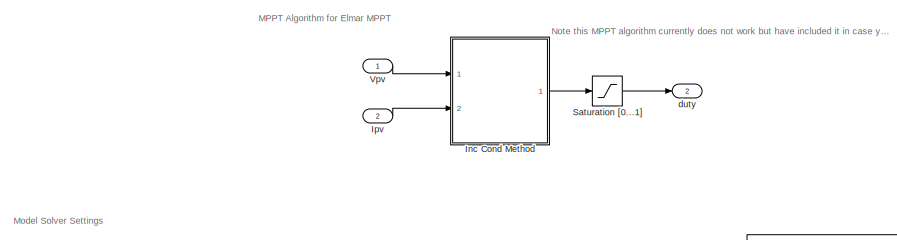
[diagram: root canvas - part 1/6, top left region]
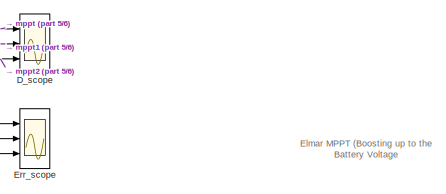
[diagram: root canvas - part 2/6, top right region]
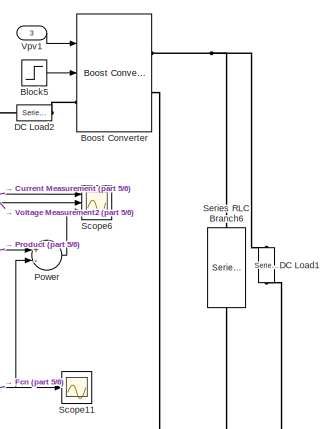
[diagram: root canvas - part 3/6, middle right region]
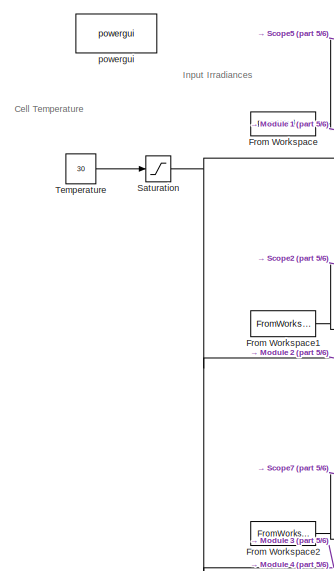
[diagram: root canvas - part 4/6, middle left region]
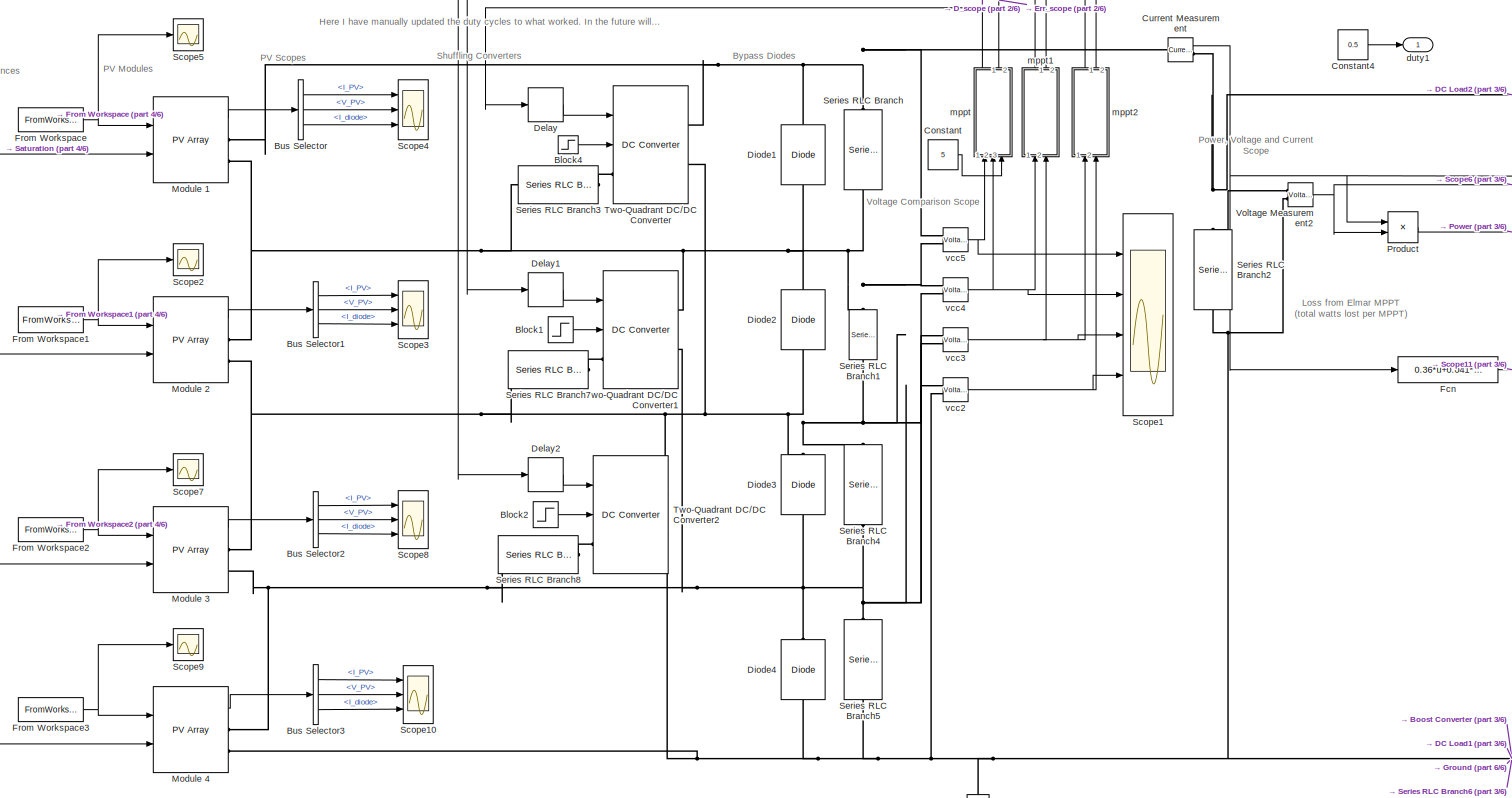
[diagram: root canvas - part 5/6, central region]
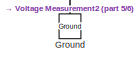
[diagram: root canvas - part 6/6, bottom center region]
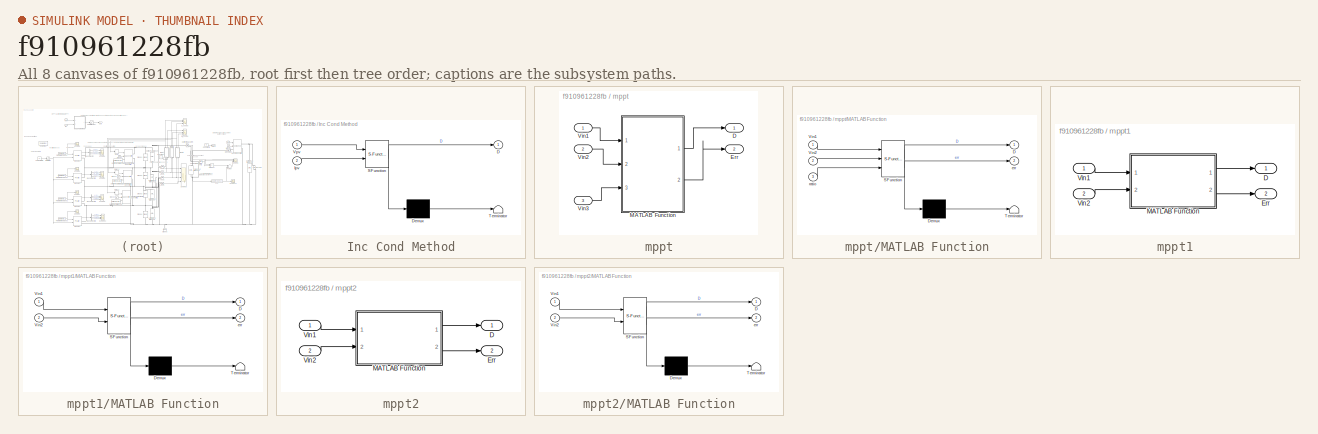
[diagram: thumbnail index - all 8 canvases of the model, root first then tree order]
MODEL slx_f910961228fb
KIND model
CONFIG AbsTol = auto
CONFIG EnableMultiTasking = off
CONFIG FixedStep = auto
CONFIG MaxStep = auto
CONFIG MinStep = auto
CONFIG RelTol = 1e-3
CONFIG SampleTimeConstraint = Unconstrained
CONFIG Solver = FixedStepDiscrete
CONFIG SolverName = FixedStepDiscrete
CONFIG StartTime = 0.0
CONFIG StopTime = 0.5
BLOCK [Step] Block1
  After = 0
  Before = 1
  SampleTime = 5e-5
  Time = 0
BLOCK [Step] Block2
  After = 0
  Before = 1
  SampleTime = 5e-5
  Time = 0
BLOCK [Step] Block4
  After = 0
  Before = 1
  SampleTime = 5e-5
  Time = 0
BLOCK [Step] Block5
  After = 0
  Before = 1
  SampleTime = 5e-5
  Time = 0
BLOCK [Reference] Boost Converter  REF=powerlib/Power
Electronics/Boost Converter
  Ports = [2, 0, 0, 0, 0, 1, 2]
  SourceBlock = powerlib/Power\nElectronics/Boost Converter
  SourceProductBaseCode = PS
  SourceProductName = Simscape Electrical
  SourceType = Boost Converter
BLOCK [BusSelector] Bus Selector
  OutputAsBus = off
  OutputSignals = I_PV,V_PV,I_diode
  Ports = [1, 3]
BLOCK [BusSelector] Bus Selector1
  OutputAsBus = off
  OutputSignals = I_PV,V_PV,I_diode
  Ports = [1, 3]
BLOCK [BusSelector] Bus Selector2
  OutputAsBus = off
  OutputSignals = I_PV,V_PV,I_diode
  Ports = [1, 3]
BLOCK [BusSelector] Bus Selector3
  OutputAsBus = off
  OutputSignals = I_PV,V_PV,I_diode
  Ports = [1, 3]
BLOCK [Constant] Constant
  Value = 5
BLOCK [Constant] Constant4
  Value = 0.5
BLOCK [Reference] Current Measurement  REF=powerlib/Measurements/Current Measurement
  Ports = [0, 1, 0, 0, 0, 1, 1]
  SourceBlock = powerlib/Measurements/Current Measurement
  SourceProductBaseCode = PS
  SourceProductName = Simscape Electrical
  SourceType = Current Measurement
  UserDataPersistent = on
BLOCK [Reference] DC Load1  REF=powerlib/Elements/Series RLC Branch
  Ports = [0, 0, 0, 0, 0, 1, 1]
  SourceBlock = powerlib/Elements/Series RLC Branch
  SourceProductBaseCode = PS
  SourceProductName = Simscape Electrical
  SourceType = Series RLC Branch
BLOCK [Reference] DC Load2  REF=powerlib/Elements/Series RLC Branch
  Ports = [0, 0, 0, 0, 0, 1, 1]
  SourceBlock = powerlib/Elements/Series RLC Branch
  SourceProductBaseCode = PS
  SourceProductName = Simscape Electrical
  SourceType = Series RLC Branch
BLOCK [Scope] D_scope
  Floating = off
  NumInputPorts = 3
  Ports = [3]
  ScopeSpecificationString = Simulink.scopes.TimeScopeBlockCfg('CurrentConfiguration', extmgr.ConfigurationSet(extmgr.Configuration('Core','General UI',true),extmgr.Configuration('Core','Source UI',true),extmgr.Configuration('Sources','WiredSimulink',true,'DataLoggingVariableName','ScopeData1'),extmgr.Configuration('Visuals','Time Domain',true,'SerializedDisplays',{struct('MinYLimReal','0.47962','MaxYLimReal','0.50197','YLabe...<+1815ch>
BLOCK [Delay] Delay
  DelayLength = 1
  InitialCondition = 0
  InputPortMap = u0
  Ports = [1, 1]
BLOCK [Delay] Delay1
  DelayLength = 1
  InitialCondition = 0
  InputPortMap = u0
  Ports = [1, 1]
BLOCK [Delay] Delay2
  DelayLength = 1
  InitialCondition = 0
  InputPortMap = u0
  Ports = [1, 1]
BLOCK [Reference] Diode1  REF=powerlib/Power
Electronics/Diode
  Ports = [0, 0, 0, 0, 0, 1, 1]
  SourceBlock = powerlib/Power\nElectronics/Diode
  SourceProductBaseCode = PS
  SourceProductName = Simscape Electrical
  SourceType = Diode
BLOCK [Reference] Diode2  REF=powerlib/Power
Electronics/Diode
  Ports = [0, 0, 0, 0, 0, 1, 1]
  SourceBlock = powerlib/Power\nElectronics/Diode
  SourceProductBaseCode = PS
  SourceProductName = Simscape Electrical
  SourceType = Diode
BLOCK [Reference] Diode3  REF=powerlib/Power
Electronics/Diode
  Ports = [0, 0, 0, 0, 0, 1, 1]
  SourceBlock = powerlib/Power\nElectronics/Diode
  SourceProductBaseCode = PS
  SourceProductName = Simscape Electrical
  SourceType = Diode
BLOCK [Reference] Diode4  REF=powerlib/Power
Electronics/Diode
  Ports = [0, 0, 0, 0, 0, 1, 1]
  SourceBlock = powerlib/Power\nElectronics/Diode
  SourceProductBaseCode = PS
  SourceProductName = Simscape Electrical
  SourceType = Diode
BLOCK [Scope] Err_scope
  Floating = off
  NumInputPorts = 3
  Ports = [3]
  ScopeSpecificationString = Simulink.scopes.TimeScopeBlockCfg('CurrentConfiguration', extmgr.ConfigurationSet(extmgr.Configuration('Core','General UI',true),extmgr.Configuration('Core','Source UI',true),extmgr.Configuration('Sources','WiredSimulink',true,'DataLoggingVariableName','ScopeData1'),extmgr.Configuration('Visuals','Time Domain',true,'SerializedDisplays',{struct('MinYLimReal','-3.57877','MaxYLimReal','3.91272','YLab...<+1512ch>
BLOCK [Fcn] Fcn
  Expr = 0.36*u+0.041*(u^2)
BLOCK [FromWorkspace] From Workspace
  OutDataTypeStr = double
  OutputAfterFinalValue = Holding final value
  SampleTime = 0
  VariableName = I1
  ZeroCross = on
BLOCK [FromWorkspace] From Workspace1
  OutDataTypeStr = double
  OutputAfterFinalValue = Holding final value
  SampleTime = 0
  VariableName = I3
  ZeroCross = on
BLOCK [FromWorkspace] From Workspace2
  OutDataTypeStr = double
  OutputAfterFinalValue = Holding final value
  SampleTime = 0
  VariableName = I5
  ZeroCross = on
BLOCK [FromWorkspace] From Workspace3
  OutDataTypeStr = double
  OutputAfterFinalValue = Holding final value
  SampleTime = 0
  VariableName = I7
  ZeroCross = on
BLOCK [Reference] Ground  REF=powerlib/Elements/Ground
  Ports = [0, 0, 0, 0, 0, 1]
  SourceBlock = powerlib/Elements/Ground
  SourceProductBaseCode = PS
  SourceProductName = Simscape Electrical
  SourceType = Ground
BLOCK [SubSystem] Inc Cond Method
  ErrorFcn = Stateflow.Translate.translate
  PermitHierarchicalResolution = ExplicitOnly
  Ports = [2, 1]
  RequestExecContextInheritance = off
  SFBlockType = Chart
  TreatAsAtomicUnit = on
BLOCK [Demux] Inc Cond Method/ Demux 
  Outputs = 1
  Ports = [1, 1]
BLOCK [S-Function] Inc Cond Method/ SFunction 
  EnableBusSupport = on
  FunctionName = sf_sfun
  PortCounts = [2 2]
  Ports = [2, 2]
  SFcnIsStateOwnerBlock = off
  SFunctionDeploymentMode = off
  Tag = Stateflow S-Function PV_Model_1ststring_shuffle_mppt 1
BLOCK [Terminator] Inc Cond Method/ Terminator 
BLOCK [Outport] Inc Cond Method/D
  IconDisplay = Port number
BLOCK [Inport] Inc Cond Method/Ipv
  IconDisplay = Port number
  Port = 2
BLOCK [Inport] Inc Cond Method/Vpv
  IconDisplay = Port number
BLOCK [Inport] Ipv
  IconDisplay = Port number
  OutDataTypeStr = double
  Port = 2
  PortDimensions = 1
  SampleTime = [0.0001,0]
  SamplingMode = Sample based
  SignalType = real
BLOCK [Reference] Module 1  REF=re_lib/Solar/PV Array
  Ports = [2, 1, 0, 0, 0, 0, 2]
  SourceBlock = re_lib/Solar/PV Array
  SourceProductBaseCode = PS
  SourceProductName = Simscape Electrical
  SourceType = PV array
BLOCK [Reference] Module 2  REF=re_lib/Solar/PV Array
  Ports = [2, 1, 0, 0, 0, 0, 2]
  SourceBlock = re_lib/Solar/PV Array
  SourceProductBaseCode = PS
  SourceProductName = Simscape Electrical
  SourceType = PV array
BLOCK [Reference] Module 3  REF=re_lib/Solar/PV Array
  Ports = [2, 1, 0, 0, 0, 0, 2]
  SourceBlock = re_lib/Solar/PV Array
  SourceProductBaseCode = PS
  SourceProductName = Simscape Electrical
  SourceType = PV array
BLOCK [Reference] Module 4  REF=re_lib/Solar/PV Array
  Ports = [2, 1, 0, 0, 0, 0, 2]
  SourceBlock = re_lib/Solar/PV Array
  SourceProductBaseCode = PS
  SourceProductName = Simscape Electrical
  SourceType = PV array
BLOCK [Sum] Power
  InputSameDT = off
  Inputs = +-
  OutDataTypeStr = Inherit: Inherit via internal rule
  Ports = [2, 1]
  SaturateOnIntegerOverflow = off
BLOCK [Product] Product
  InputSameDT = off
  OutDataTypeStr = Inherit: Inherit via internal rule
  Ports = [2, 1]
  RndMeth = Floor
  SaturateOnIntegerOverflow = off
BLOCK [Saturate] Saturation
  InputPortMap = u0
  LowerLimit = 5
  Ports = [1, 1]
  UpperLimit = 55
BLOCK [Saturate] Saturation [0...1]
  InputPortMap = u0
  LowerLimit = 0
  Ports = [1, 1]
  UpperLimit = 1
BLOCK [Scope] Scope1
  Floating = off
  NumInputPorts = 4
  Ports = [4]
  ScopeSpecificationString = Simulink.scopes.TimeScopeBlockCfg('CurrentConfiguration', extmgr.ConfigurationSet(extmgr.Configuration('Core','General UI',true),extmgr.Configuration('Core','Source UI',true),extmgr.Configuration('Sources','WiredSimulink',true,'DataLoggingVariableName','ScopeData5'),extmgr.Configuration('Visuals','Time Domain',true,'SerializedDisplays',{struct('MinYLimReal','-0.56172','MaxYLimReal','4.39182','YLab...<+1620ch>
BLOCK [Scope] Scope10
  Floating = off
  NumInputPorts = 3
  Ports = [3]
  ScopeSpecificationString = Simulink.scopes.TimeScopeBlockCfg('CurrentConfiguration', extmgr.ConfigurationSet(extmgr.Configuration('Core','General UI',true),extmgr.Configuration('Core','Source UI',true),extmgr.Configuration('Sources','WiredSimulink',true,'DataLoggingVariableName','ScopeData4'),extmgr.Configuration('Visuals','Time Domain',true,'SerializedDisplays',{struct('MinYLimReal','-0.61023','MaxYLimReal','4.43607','YLab...<+1457ch>
BLOCK [Scope] Scope11
  Floating = off
  NumInputPorts = 1
  Ports = [1]
  ScopeSpecificationString = Simulink.scopes.TimeScopeBlockCfg('CurrentConfiguration', extmgr.ConfigurationSet(extmgr.Configuration('Core','General UI',true),extmgr.Configuration('Core','Source UI',true),extmgr.Configuration('Sources','WiredSimulink',true,'DataLoggingVariableName','ScopeData1'),extmgr.Configuration('Visuals','Time Domain',true,'SerializedDisplays',{struct('MinYLimReal','1.11191','MaxYLimReal','1.50985','YLabe...<+1385ch>
BLOCK [Scope] Scope2
  Floating = off
  NumInputPorts = 1
  Ports = [1]
  ScopeSpecificationString = Simulink.scopes.TimeScopeBlockCfg('CurrentConfiguration', extmgr.ConfigurationSet(extmgr.Configuration('Core','General UI',true),extmgr.Configuration('Core','Source UI',true),extmgr.Configuration('Sources','WiredSimulink',true),extmgr.Configuration('Visuals','Time Domain',true,'SerializedDisplays',{struct('MinYLimReal','461.75','MaxYLimReal','524.25','YLabelReal','','MinYLimMag','461.75','MaxYLimM...<+1324ch>
BLOCK [Scope] Scope3
  Floating = off
  NumInputPorts = 3
  Ports = [3]
  ScopeSpecificationString = Simulink.scopes.TimeScopeBlockCfg('CurrentConfiguration', extmgr.ConfigurationSet(extmgr.Configuration('Core','General UI',true),extmgr.Configuration('Core','Source UI',true),extmgr.Configuration('Sources','WiredSimulink',true,'DataLoggingVariableName','ScopeData1'),extmgr.Configuration('Visuals','Time Domain',true,'SerializedDisplays',{struct('MinYLimReal','-0.81492','MaxYLimReal','7.33424','YLab...<+1766ch>
BLOCK [Scope] Scope4
  Floating = off
  NumInputPorts = 3
  Ports = [3]
  ScopeSpecificationString = Simulink.scopes.TimeScopeBlockCfg('CurrentConfiguration', extmgr.ConfigurationSet(extmgr.Configuration('Core','General UI',true),extmgr.Configuration('Core','Source UI',true),extmgr.Configuration('Sources','WiredSimulink',true,'DataLoggingVariableName','ScopeData2'),extmgr.Configuration('Visuals','Time Domain',true,'SerializedDisplays',{struct('MinYLimReal','-3.21798','MaxYLimReal','6.19625','YLab...<+1766ch>
BLOCK [Scope] Scope5
  Floating = off
  NumInputPorts = 1
  Ports = [1]
  ScopeSpecificationString = Simulink.scopes.TimeScopeBlockCfg('CurrentConfiguration', extmgr.ConfigurationSet(extmgr.Configuration('Core','General UI',true),extmgr.Configuration('Core','Source UI',true),extmgr.Configuration('Sources','WiredSimulink',true,'DataLoggingVariableName','ScopeData3'),extmgr.Configuration('Visuals','Time Domain',true,'SerializedDisplays',{struct('MinYLimReal','464.875','MaxYLimReal','496.125','YLabe...<+1371ch>
BLOCK [Scope] Scope6
  Floating = off
  NumInputPorts = 3
  Ports = [3]
  ScopeSpecificationString = Simulink.scopes.TimeScopeBlockCfg('CurrentConfiguration', extmgr.ConfigurationSet(extmgr.Configuration('Core','General UI',true),extmgr.Configuration('Core','Source UI',true),extmgr.Configuration('Sources','WiredSimulink',true,'DataLoggingVariableName','ScopeData4'),extmgr.Configuration('Visuals','Time Domain',true,'SerializedDisplays',{struct('MinYLimReal','-11.24546','MaxYLimReal','101.21719','Y...<+1561ch>
BLOCK [Scope] Scope7
  Floating = off
  NumInputPorts = 1
  Ports = [1]
  ScopeSpecificationString = Simulink.scopes.TimeScopeBlockCfg('CurrentConfiguration', extmgr.ConfigurationSet(extmgr.Configuration('Core','General UI',true),extmgr.Configuration('Core','Source UI',true),extmgr.Configuration('Sources','WiredSimulink',true,'DataLoggingVariableName','ScopeData1'),extmgr.Configuration('Visuals','Time Domain',true,'SerializedDisplays',{struct('MinYLimReal','461.75','MaxYLimReal','524.25','YLabelR...<+1363ch>
BLOCK [Scope] Scope8
  Floating = off
  NumInputPorts = 3
  Ports = [3]
  ScopeSpecificationString = Simulink.scopes.TimeScopeBlockCfg('CurrentConfiguration', extmgr.ConfigurationSet(extmgr.Configuration('Core','General UI',true),extmgr.Configuration('Core','Source UI',true),extmgr.Configuration('Sources','WiredSimulink',true,'DataLoggingVariableName','ScopeData2'),extmgr.Configuration('Visuals','Time Domain',true,'SerializedDisplays',{struct('MinYLimReal','-0.49895','MaxYLimReal','4.35857','YLab...<+1457ch>
BLOCK [Scope] Scope9
  Floating = off
  NumInputPorts = 1
  Ports = [1]
  ScopeSpecificationString = Simulink.scopes.TimeScopeBlockCfg('CurrentConfiguration', extmgr.ConfigurationSet(extmgr.Configuration('Core','General UI',true),extmgr.Configuration('Core','Source UI',true),extmgr.Configuration('Sources','WiredSimulink',true,'DataLoggingVariableName','ScopeData3'),extmgr.Configuration('Visuals','Time Domain',true,'SerializedDisplays',{struct('MinYLimReal','461.75','MaxYLimReal','524.25','YLabelR...<+1363ch>
BLOCK [Reference] Series RLC Branch  REF=powerlib/Elements/Series RLC Branch
  Ports = [0, 0, 0, 0, 0, 1, 1]
  SourceBlock = powerlib/Elements/Series RLC Branch
  SourceProductBaseCode = PS
  SourceProductName = Simscape Electrical
  SourceType = Series RLC Branch
BLOCK [Reference] Series RLC Branch1  REF=powerlib/Elements/Series RLC Branch
  Ports = [0, 0, 0, 0, 0, 1, 1]
  SourceBlock = powerlib/Elements/Series RLC Branch
  SourceProductBaseCode = PS
  SourceProductName = Simscape Electrical
  SourceType = Series RLC Branch
BLOCK [Reference] Series RLC Branch2  REF=powerlib/Elements/Series RLC Branch
  Ports = [0, 0, 0, 0, 0, 1, 1]
  SourceBlock = powerlib/Elements/Series RLC Branch
  SourceProductBaseCode = PS
  SourceProductName = Simscape Electrical
  SourceType = Series RLC Branch
BLOCK [Reference] Series RLC Branch3  REF=powerlib/Elements/Series RLC Branch
  Ports = [0, 0, 0, 0, 0, 1, 1]
  SourceBlock = powerlib/Elements/Series RLC Branch
  SourceProductBaseCode = PS
  SourceProductName = Simscape Electrical
  SourceType = Series RLC Branch
BLOCK [Reference] Series RLC Branch4  REF=powerlib/Elements/Series RLC Branch
  Ports = [0, 0, 0, 0, 0, 1, 1]
  SourceBlock = powerlib/Elements/Series RLC Branch
  SourceProductBaseCode = PS
  SourceProductName = Simscape Electrical
  SourceType = Series RLC Branch
BLOCK [Reference] Series RLC Branch5  REF=powerlib/Elements/Series RLC Branch
  Ports = [0, 0, 0, 0, 0, 1, 1]
  SourceBlock = powerlib/Elements/Series RLC Branch
  SourceProductBaseCode = PS
  SourceProductName = Simscape Electrical
  SourceType = Series RLC Branch
BLOCK [Reference] Series RLC Branch6  REF=powerlib/Elements/Series RLC Branch
  Ports = [0, 0, 0, 0, 0, 1, 1]
  SourceBlock = powerlib/Elements/Series RLC Branch
  SourceProductBaseCode = PS
  SourceProductName = Simscape Electrical
  SourceType = Series RLC Branch
BLOCK [Reference] Series RLC Branch7  REF=powerlib/Elements/Series RLC Branch
  Ports = [0, 0, 0, 0, 0, 1, 1]
  SourceBlock = powerlib/Elements/Series RLC Branch
  SourceProductBaseCode = PS
  SourceProductName = Simscape Electrical
  SourceType = Series RLC Branch
BLOCK [Reference] Series RLC Branch8  REF=powerlib/Elements/Series RLC Branch
  Ports = [0, 0, 0, 0, 0, 1, 1]
  SourceBlock = powerlib/Elements/Series RLC Branch
  SourceProductBaseCode = PS
  SourceProductName = Simscape Electrical
  SourceType = Series RLC Branch
BLOCK [Constant] Temperature
  Value = 30
BLOCK [Reference] Two-Quadrant DC//DC Converter  REF=powerlib/Power
Electronics/Two-Quadrant
DC//DC Converter
  Ports = [2, 0, 0, 0, 0, 1, 2]
  SourceBlock = powerlib/Power\nElectronics/Two-Quadrant\nDC//DC Converter
  SourceProductBaseCode = PS
  SourceProductName = Simscape Electrical
  SourceType = Two-Quadrant DC/DC Converter
BLOCK [Reference] Two-Quadrant DC//DC Converter1  REF=powerlib/Power
Electronics/Two-Quadrant
DC//DC Converter
  Ports = [2, 0, 0, 0, 0, 1, 2]
  SourceBlock = powerlib/Power\nElectronics/Two-Quadrant\nDC//DC Converter
  SourceProductBaseCode = PS
  SourceProductName = Simscape Electrical
  SourceType = Two-Quadrant DC/DC Converter
BLOCK [Reference] Two-Quadrant DC//DC Converter2  REF=powerlib/Power
Electronics/Two-Quadrant
DC//DC Converter
  Ports = [2, 0, 0, 0, 0, 1, 2]
  SourceBlock = powerlib/Power\nElectronics/Two-Quadrant\nDC//DC Converter
  SourceProductBaseCode = PS
  SourceProductName = Simscape Electrical
  SourceType = Two-Quadrant DC/DC Converter
BLOCK [Reference] Voltage Measurement2  REF=powerlib/Measurements/Voltage Measurement
  Ports = [0, 1, 0, 0, 0, 2]
  SourceBlock = powerlib/Measurements/Voltage Measurement
  SourceProductBaseCode = PS
  SourceProductName = Simscape Electrical
  SourceType = Voltage Measurement
  UserDataPersistent = on
BLOCK [Inport] Vpv
  IconDisplay = Port number
  OutDataTypeStr = double
  PortDimensions = 1
  SampleTime = [0.0001,0]
  SamplingMode = Sample based
  SignalType = real
BLOCK [Inport] Vpv1
  IconDisplay = Port number
  OutDataTypeStr = double
  Port = 3
  PortDimensions = 1
  SampleTime = [0.0001,0]
  SamplingMode = Sample based
  SignalType = real
BLOCK [Outport] duty
  IconDisplay = Port number
  OutDataTypeStr = double
  Port = 2
  PortDimensions = 1
  SampleTime = [0.0001,0]
  SamplingMode = Sample based
  SignalType = real
BLOCK [Outport] duty1
  IconDisplay = Port number
  OutDataTypeStr = double
  PortDimensions = 1
  SampleTime = [0.0001,0]
  SamplingMode = Sample based
  SignalType = real
BLOCK [SubSystem] mppt
  Ports = [3, 2]
  RequestExecContextInheritance = off
BLOCK [Outport] mppt/D
  IconDisplay = Port number
BLOCK [Outport] mppt/Err
  IconDisplay = Port number
  Port = 2
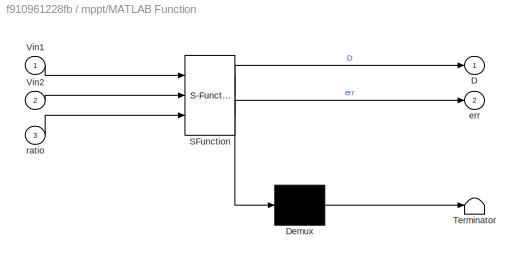
BLOCK [SubSystem] mppt/MATLAB Function
  ErrorFcn = Stateflow.Translate.translate
  PermitHierarchicalResolution = ExplicitOnly
  Ports = [3, 2]
  RequestExecContextInheritance = off
  SFBlockType = MATLAB Function
  TreatAsAtomicUnit = on
BLOCK [Demux] mppt/MATLAB Function/ Demux 
  Outputs = 1
  Ports = [1, 1]
BLOCK [S-Function] mppt/MATLAB Function/ SFunction 
  EnableBusSupport = on
  FunctionName = sf_sfun
  PortCounts = [3 3]
  Ports = [3, 3]
  SFcnIsStateOwnerBlock = off
  SFunctionDeploymentMode = off
  Tag = Stateflow S-Function PV_Model_1ststring_shuffle_mppt 5
BLOCK [Terminator] mppt/MATLAB Function/ Terminator 
BLOCK [Outport] mppt/MATLAB Function/D
  IconDisplay = Port number
BLOCK [Inport] mppt/MATLAB Function/Vin1
  IconDisplay = Port number
BLOCK [Inport] mppt/MATLAB Function/Vin2
  IconDisplay = Port number
  Port = 2
BLOCK [Outport] mppt/MATLAB Function/err
  IconDisplay = Port number
  Port = 2
BLOCK [Inport] mppt/MATLAB Function/ratio
  IconDisplay = Port number
  Port = 3
BLOCK [Inport] mppt/Vin1
  IconDisplay = Port number
BLOCK [Inport] mppt/Vin2
  IconDisplay = Port number
  Port = 2
BLOCK [Inport] mppt/Vin3
  IconDisplay = Port number
  Port = 3
BLOCK [SubSystem] mppt1
  Ports = [2, 2]
  RequestExecContextInheritance = off
BLOCK [Outport] mppt1/D
  IconDisplay = Port number
BLOCK [Outport] mppt1/Err
  IconDisplay = Port number
  Port = 2
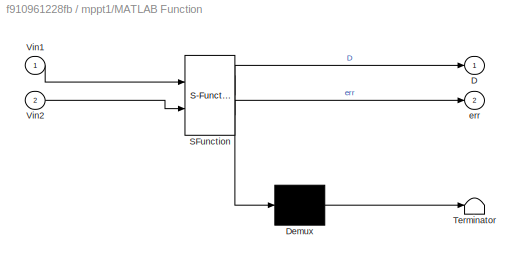
BLOCK [SubSystem] mppt1/MATLAB Function
  ErrorFcn = Stateflow.Translate.translate
  PermitHierarchicalResolution = ExplicitOnly
  Ports = [2, 2]
  RequestExecContextInheritance = off
  SFBlockType = MATLAB Function
  TreatAsAtomicUnit = on
BLOCK [Demux] mppt1/MATLAB Function/ Demux 
  Outputs = 1
  Ports = [1, 1]
BLOCK [S-Function] mppt1/MATLAB Function/ SFunction 
  EnableBusSupport = on
  FunctionName = sf_sfun
  PortCounts = [2 3]
  Ports = [2, 3]
  SFcnIsStateOwnerBlock = off
  SFunctionDeploymentMode = off
  Tag = Stateflow S-Function PV_Model_1ststring_shuffle_mppt 2
BLOCK [Terminator] mppt1/MATLAB Function/ Terminator 
BLOCK [Outport] mppt1/MATLAB Function/D
  IconDisplay = Port number
BLOCK [Inport] mppt1/MATLAB Function/Vin1
  IconDisplay = Port number
BLOCK [Inport] mppt1/MATLAB Function/Vin2
  IconDisplay = Port number
  Port = 2
BLOCK [Outport] mppt1/MATLAB Function/err
  IconDisplay = Port number
  Port = 2
BLOCK [Inport] mppt1/Vin1
  IconDisplay = Port number
BLOCK [Inport] mppt1/Vin2
  IconDisplay = Port number
  Port = 2
BLOCK [SubSystem] mppt2
  Ports = [2, 2]
  RequestExecContextInheritance = off
BLOCK [Outport] mppt2/D
  IconDisplay = Port number
BLOCK [Outport] mppt2/Err
  IconDisplay = Port number
  Port = 2
BLOCK [SubSystem] mppt2/MATLAB Function
  ErrorFcn = Stateflow.Translate.translate
  PermitHierarchicalResolution = ExplicitOnly
  Ports = [2, 2]
  RequestExecContextInheritance = off
  SFBlockType = MATLAB Function
  TreatAsAtomicUnit = on
BLOCK [Demux] mppt2/MATLAB Function/ Demux 
  Outputs = 1
  Ports = [1, 1]
BLOCK [S-Function] mppt2/MATLAB Function/ SFunction 
  EnableBusSupport = on
  FunctionName = sf_sfun
  PortCounts = [2 3]
  Ports = [2, 3]
  SFcnIsStateOwnerBlock = off
  SFunctionDeploymentMode = off
  Tag = Stateflow S-Function PV_Model_1ststring_shuffle_mppt 3
BLOCK [Terminator] mppt2/MATLAB Function/ Terminator 
BLOCK [Outport] mppt2/MATLAB Function/D
  IconDisplay = Port number
BLOCK [Inport] mppt2/MATLAB Function/Vin1
  IconDisplay = Port number
BLOCK [Inport] mppt2/MATLAB Function/Vin2
  IconDisplay = Port number
  Port = 2
BLOCK [Outport] mppt2/MATLAB Function/err
  IconDisplay = Port number
  Port = 2
BLOCK [Inport] mppt2/Vin1
  IconDisplay = Port number
BLOCK [Inport] mppt2/Vin2
  IconDisplay = Port number
  Port = 2
BLOCK [Reference] powergui  REF=powerlib/powergui
  Ports = []
  Priority = 1
  SourceBlock = powerlib/powergui
  SourceProductBaseCode = PS
  SourceProductName = Simscape Electrical
  SourceType = PSB option menu block
BLOCK [Reference] vcc2  REF=powerlib/Measurements/Voltage Measurement
  Ports = [0, 1, 0, 0, 0, 2]
  SourceBlock = powerlib/Measurements/Voltage Measurement
  SourceProductBaseCode = PS
  SourceProductName = Simscape Electrical
  SourceType = Voltage Measurement
  UserDataPersistent = on
BLOCK [Reference] vcc3  REF=powerlib/Measurements/Voltage Measurement
  Ports = [0, 1, 0, 0, 0, 2]
  SourceBlock = powerlib/Measurements/Voltage Measurement
  SourceProductBaseCode = PS
  SourceProductName = Simscape Electrical
  SourceType = Voltage Measurement
  UserDataPersistent = on
BLOCK [Reference] vcc4  REF=powerlib/Measurements/Voltage Measurement
  Ports = [0, 1, 0, 0, 0, 2]
  SourceBlock = powerlib/Measurements/Voltage Measurement
  SourceProductBaseCode = PS
  SourceProductName = Simscape Electrical
  SourceType = Voltage Measurement
  UserDataPersistent = on
BLOCK [Reference] vcc5  REF=powerlib/Measurements/Voltage Measurement
  Ports = [0, 1, 0, 0, 0, 2]
  SourceBlock = powerlib/Measurements/Voltage Measurement
  SourceProductBaseCode = PS
  SourceProductName = Simscape Electrical
  SourceType = Voltage Measurement
  UserDataPersistent = on
ANNOTATION (root): Bypass Diodes
ANNOTATION (root): Cell Temperature
ANNOTATION (root): Elmar MPPT (Boosting up to the Battery Voltage
ANNOTATION (root): Here I have manually updated the duty cycles to what worked. In the future will need a MPPT algorithm
ANNOTATION (root): Input Irradiances
ANNOTATION (root): Loss from Elmar MPPT (total watts lost per MPPT)
ANNOTATION (root): MPPT Algorithm for Elmar MPPT
ANNOTATION (root): Model Solver Settings
ANNOTATION (root): Note this MPPT algorithm currently does not work but have included it in case you want to try to get it working. Will need to research the inport and outport and how to connect as I don't have those connected in this model
ANNOTATION (root): PV Modules
ANNOTATION (root): PV Scopes
ANNOTATION (root): Power, Voltage and Current Scope
ANNOTATION (root): Shuffling Converters
ANNOTATION (root): Voltage Comparison Scope
LINE Block1:1 -> Two-Quadrant DC//DC Converter1:2
LINE Block2:1 -> Two-Quadrant DC//DC Converter2:2
LINE Block4:1 -> Two-Quadrant DC//DC Converter:2
LINE Block5:1 -> Boost Converter:2
LINE Bus Selector1:1 -> Scope3:1
LINE Bus Selector1:2 -> Scope3:2
LINE Bus Selector1:3 -> Scope3:3
LINE Bus Selector2:1 -> Scope8:1
LINE Bus Selector2:2 -> Scope8:2
LINE Bus Selector2:3 -> Scope8:3
LINE Bus Selector3:1 -> Scope10:1
LINE Bus Selector3:2 -> Scope10:2
LINE Bus Selector3:3 -> Scope10:3
LINE Bus Selector:1 -> Scope4:1
LINE Bus Selector:2 -> Scope4:2
LINE Bus Selector:3 -> Scope4:3
LINE Constant4:1 -> duty1:1
LINE Constant:1 -> mppt:3
NET Current Measurement:1 -> Fcn:1, Product:1, Scope6:1
LINE Delay1:1 -> Two-Quadrant DC//DC Converter1:1
LINE Delay2:1 -> Two-Quadrant DC//DC Converter2:1
LINE Delay:1 -> Two-Quadrant DC//DC Converter:1
NET Fcn:1 -> Power:2, Scope11:1
NET From Workspace1:1 -> Module 2:1, Scope2:1
NET From Workspace2:1 -> Module 3:1, Scope7:1
NET From Workspace3:1 -> Module 4:1, Scope9:1
NET From Workspace:1 -> Module 1:1, Scope5:1
LINE Inc Cond Method:1 -> Saturation [0...1]:1
LINE Ipv:1 -> Inc Cond Method:2
LINE Module 1:1 -> Bus Selector:1
LINE Module 2:1 -> Bus Selector1:1
LINE Module 3:1 -> Bus Selector2:1
LINE Module 4:1 -> Bus Selector3:1
LINE Power:1 -> Scope6:3
LINE Product:1 -> Power:1
LINE Saturation [0...1]:1 -> duty:1
NET Saturation:1 -> Module 1:2, Module 2:2, Module 3:2, Module 4:2
LINE Temperature:1 -> Saturation:1
NET Voltage Measurement2:1 -> Product:2, Scope6:2
LINE Vpv1:1 -> Boost Converter:1
LINE Vpv:1 -> Inc Cond Method:1
LINE mppt/MATLAB Function:1 -> mppt/D:1
LINE mppt/MATLAB Function:2 -> mppt/Err:1
LINE mppt/Vin1:1 -> mppt/MATLAB Function:1
LINE mppt/Vin2:1 -> mppt/MATLAB Function:2
LINE mppt/Vin3:1 -> mppt/MATLAB Function:3
LINE mppt1/MATLAB Function:1 -> mppt1/D:1
LINE mppt1/MATLAB Function:2 -> mppt1/Err:1
LINE mppt1/Vin1:1 -> mppt1/MATLAB Function:1
LINE mppt1/Vin2:1 -> mppt1/MATLAB Function:2
NET mppt1:1 -> D_scope:2, Delay1:1
LINE mppt1:2 -> Err_scope:2
LINE mppt2/MATLAB Function:1 -> mppt2/D:1
LINE mppt2/MATLAB Function:2 -> mppt2/Err:1
LINE mppt2/Vin1:1 -> mppt2/MATLAB Function:1
LINE mppt2/Vin2:1 -> mppt2/MATLAB Function:2
NET mppt2:1 -> D_scope:3, Delay2:1
LINE mppt2:2 -> Err_scope:3
NET mppt:1 -> D_scope:1, Delay:1
LINE mppt:2 -> Err_scope:1
NET vcc2:1 -> Scope1:4, mppt2:2
NET vcc3:1 -> Scope1:3, mppt1:2, mppt2:1
NET vcc4:1 -> Scope1:2, mppt1:1, mppt:2
NET vcc5:1 -> Scope1:1, mppt:1
PLINE Boost Converter:LConn1 -- DC Load2:RConn1
PNET net1: Boost Converter:RConn1 -- DC Load1:LConn1 -- Series RLC Branch6:LConn1
PNET net2: Boost Converter:RConn2 -- DC Load1:RConn1 -- Diode4:LConn1 -- Ground:LConn1 -- Module 4:RConn2 -- Series RLC Branch2:RConn1 -- Series RLC Branch5:RConn1 -- Series RLC Branch6:RConn1 -- Two-Quadrant DC//DC Converter2:RConn2 -- Voltage Measurement2:LConn2 -- vcc2:LConn2
PNET net3: Current Measurement:LConn1 -- Diode1:RConn1 -- Module 1:RConn1 -- Series RLC Branch:LConn1 -- Two-Quadrant DC//DC Converter:RConn1 -- vcc5:LConn1
PNET net4: Current Measurement:RConn1 -- DC Load2:LConn1 -- Series RLC Branch2:LConn1 -- Voltage Measurement2:LConn1
PNET net5: Diode1:LConn1 -- Diode2:RConn1 -- Module 1:RConn2 -- Module 2:RConn1 -- Series RLC Branch1:LConn1 -- Series RLC Branch3:LConn1 -- Series RLC Branch:RConn1 -- Two-Quadrant DC//DC Converter1:RConn1 -- vcc4:LConn1 -- vcc5:LConn2
PNET net6: Diode2:LConn1 -- Diode3:RConn1 -- Module 2:RConn2 -- Module 3:RConn1 -- Series RLC Branch1:RConn1 -- Series RLC Branch4:LConn1 -- Series RLC Branch7:LConn1 -- Two-Quadrant DC//DC Converter2:RConn1 -- Two-Quadrant DC//DC Converter:RConn2 -- vcc3:LConn1 -- vcc4:LConn2
PNET net7: Diode3:LConn1 -- Diode4:RConn1 -- Module 3:RConn2 -- Module 4:RConn1 -- Series RLC Branch4:RConn1 -- Series RLC Branch5:LConn1 -- Series RLC Branch8:LConn1 -- Two-Quadrant DC//DC Converter1:RConn2 -- vcc2:LConn1 -- vcc3:LConn2
PLINE Series RLC Branch3:RConn1 -- Two-Quadrant DC//DC Converter:LConn1
PLINE Series RLC Branch7:RConn1 -- Two-Quadrant DC//DC Converter1:LConn1
PLINE Series RLC Branch8:RConn1 -- Two-Quadrant DC//DC Converter2:LConn1
note: NET lines group one-source signal fan-out (src -> all destinations, sorted); 1:1 wires keep LINE; PNET lines group multi-terminal physical nets as a canonical sorted terminal list (undirected conserving connections); 2-terminal nets keep the pairwise PLINE form
CHART Inc Cond Method states=4 transitions=12
  STATE_LABEL 'SAMPLEandCALCULATE\nentry:\ndeltaV = Vpv - Vprev;\ndeltaI = Ipv - Iprev;\nd = D;'
  STATE_LABEL 'INCREMENT_DUTY\nentry:\nd = d + deltad;'
  STATE_LABEL 'DECREMENT_DUTY\nentry:\nd = d - deltad;'
  STATE_LABEL 'RETURN\nentry:\nVprev = Vpv; Iprev = Ipv;\nD = d;'
CHART mppt1/MATLAB Function states=1 transitions=1
  STATE_LABEL 'eML_blk_kernel()'
  STATE_LABEL 'SCRIPT:\nfunction [D,err] = getD(Vin1, Vin2)\n\n% Increase in D => decrease in Vin1\n\nerr = Vin1 - Vin2;\n\nVin = Vin1 + Vin2;\nVout = Vin1;\n\nD = Vout/Vin;\n\nif (D > 0) && (D < 1) % If valid\n    if (err > 0) % if Vin1 > Vin2\n        D = D + 0.001;\n    elseif (err < 0) % Vin1 < Vin2\n        D = D - 0.001;\n    end\nelseif D > 1 % set upper lim to 1\n    D = 1;\nelseif D < 0 % Set lower lim to 0\n    D = 0;\nend\n...<+1ch>'
CHART mppt2/MATLAB Function states=1 transitions=1
  STATE_LABEL 'eML_blk_kernel()'
  STATE_LABEL 'SCRIPT:\nfunction [D,err] = getD(Vin1, Vin2)\n\n% Increase in D => decrease in Vin1\n\nerr = Vin1 - Vin2;\n\nVin = Vin1 + Vin2;\nVout = Vin1;\n\nD = Vout/Vin;\n\nif (D > 0) && (D < 1) % If valid\n    if (err > 0) % if Vin1 > Vin2\n        D = D + 0.001;\n    elseif (err < 0) % Vin1 < Vin2\n        D = D - 0.001;\n    end\nelseif D > 1 % set upper lim to 1\n    D = 1;\nelseif D < 0 % Set lower lim to 0\n    D = 0;\nend\n...<+1ch>'
CHART mppt/MATLAB Function states=1 transitions=1
  STATE_LABEL 'eML_blk_kernel()'
  STATE_LABEL 'SCRIPT:\nfunction [D,err] = getD(Vin1, Vin2, ratio)\n\n% Increase in D => decrease in Vin1\n%               => increase in Vin2\n\nKp = 1;\n\nerr = ratio*Vin1 - Vin2;\n\nVin = ratio*Vin1 + Vin2;\nVout = Vin1;\n% Calculate old D\nD = Vout/Vin;\n\nif (D > 0) && (D < 1) % If valid\n%     if (err > 0) % if Vin1 > Vin2\n%         D = D + 0.001;\n%     elseif (err < 0) % Vin1 < Vin2\n%         D = D - 0.001;\n%     end\n   ...<+112ch>'
